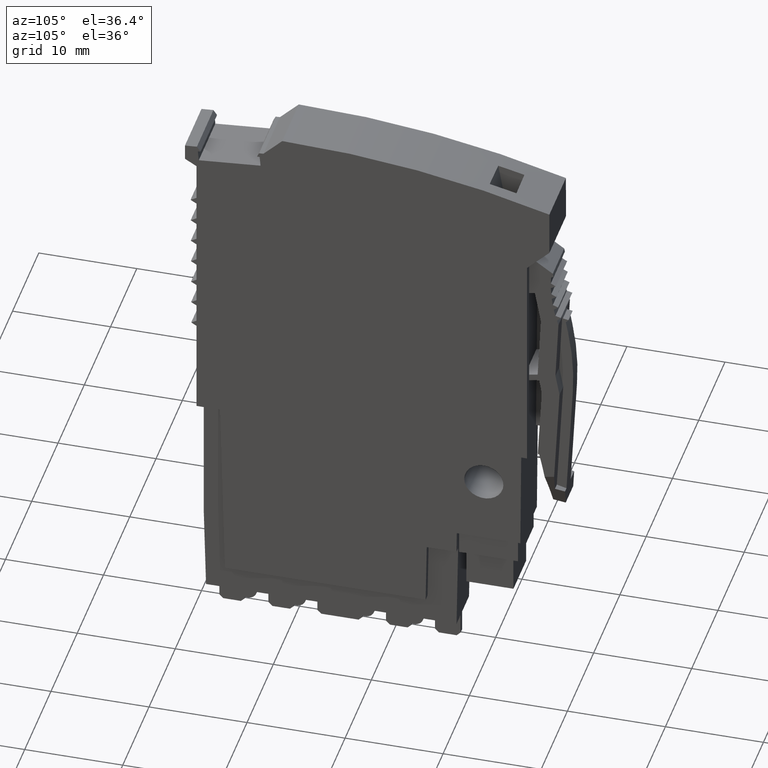
[diagram: clean part render]
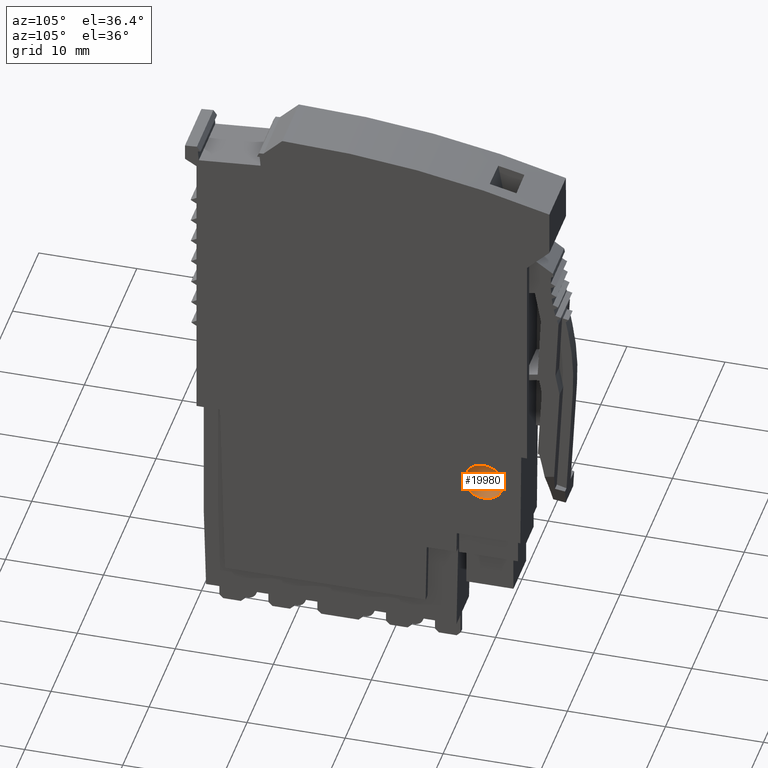
[diagram: same view with one face highlighted and labeled with its STEP entity id]
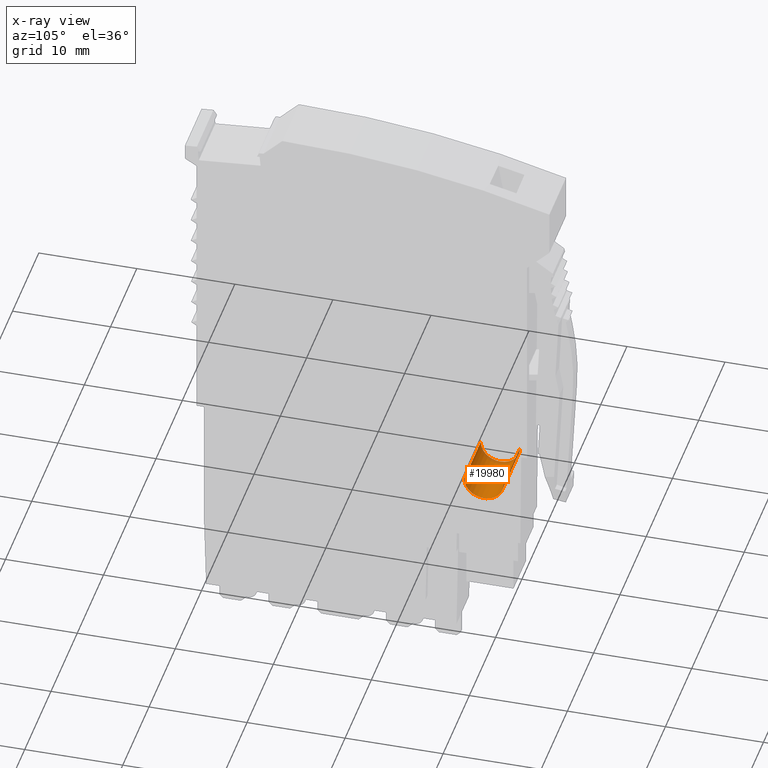
[diagram: x-ray of the same camera — body ghosted, the highlighted face saturated]
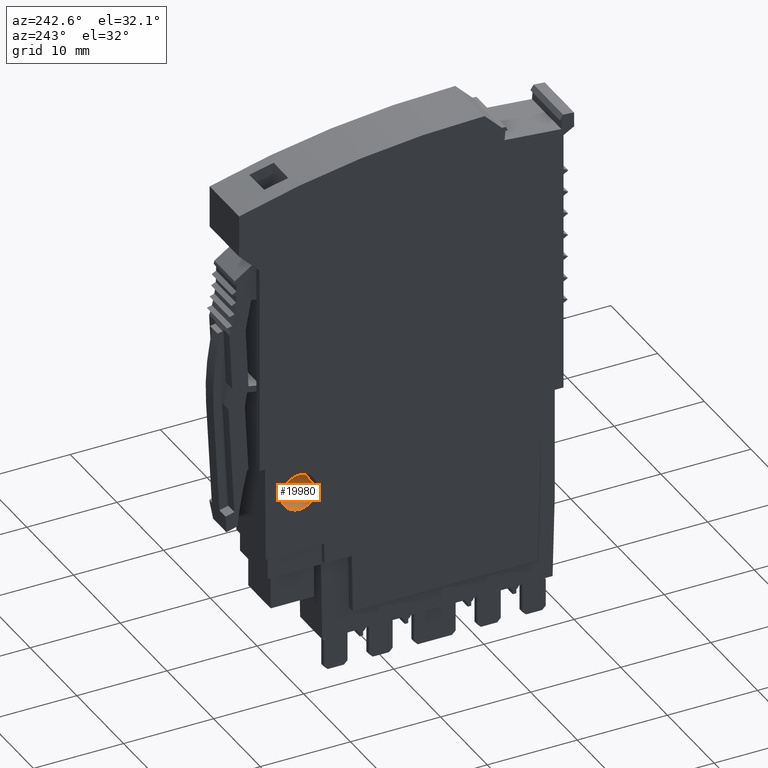
[diagram: same view with one face highlighted and labeled with its STEP entity id]
A machine part, auxiliary view. The second image highlights one B-rep face of the part: STEP entity #19980.
The next image is the same camera in x-ray: the body ghosted, the highlighted face saturated — about 7% of this face is hidden behind the body in this view.
A second angle (auxiliary view) of the same face is appended — the face is thin or edge-on in the first view.
In plain terms, the highlighted cylindrical surface (edge-blend (fillet) strip) has radius 2 mm, axis along (1, 0, 0).
Its self-contained STEP definition (entity closure, byte-faithful):
#19530=CARTESIAN_POINT('',(-2.89964321690515,54.6030367051887,
6.02557360760812E-8));
#19540=DIRECTION('',(-4.25831752161686E-18,-1.10352358519E-9,1.));
#19550=DIRECTION('',(1.,0.,4.25831752161686E-18));
#19560=AXIS2_PLACEMENT_3D('',#19530,#19540,#19550);
#19570=CYLINDRICAL_SURFACE('',#19560,2.);
#19580=CARTESIAN_POINT('',(-2.89964321690514,54.6030367051887,
6.02557360881995E-8));
#19590=DIRECTION('',(-4.25831525547475E-18,-1.10352358519E-9,1.));
#19600=DIRECTION('',(-1.,-3.5527136788005E-15,-4.25831917597809E-18));
#19610=AXIS2_PLACEMENT_3D('',#19580,#19590,#19600);
#19620=CIRCLE('',#19610,2.);
#19630=CARTESIAN_POINT('',(-2.89964341547315,52.6030367051887,
5.80486889195792E-8));
#19640=VERTEX_POINT('',#19630);
#19650=CARTESIAN_POINT('',(-0.89964321690515,54.6030367051887,
6.02557360967161E-8));
#19660=VERTEX_POINT('',#19650);
#19670=EDGE_CURVE('',#19640,#19660,#19620,.T.);
#19680=ORIENTED_EDGE('',*,*,#19670,.F.);
#19690=CARTESIAN_POINT('',(-0.89964321690515,54.6030367051887,
6.02557360845978E-8));
#19700=DIRECTION('',(-4.25831752161686E-18,-1.10352358519E-9,1.));
#19710=VECTOR('',#19700,1.);
#19720=LINE('',#19690,#19710);
#19730=CARTESIAN_POINT('',(-0.89964321690515,54.6030366982365,
6.30000004348015));
#19740=VERTEX_POINT('',#19730);
#19750=EDGE_CURVE('',#19660,#19740,#19720,.T.);
#19760=ORIENTED_EDGE('',*,*,#19750,.F.);
#19770=CARTESIAN_POINT('',(-2.89964321690515,54.6030366982365,
6.30000004093548));
#19780=DIRECTION('',(-1.27233440234888E-9,-1.58421926328788E-24,1.));
#19790=DIRECTION('',(-1.,0.,-1.27233440234888E-9));
#19800=AXIS2_PLACEMENT_3D('',#19770,#19780,#19790);
#19810=CIRCLE('',#19800,2.);
#19820=CARTESIAN_POINT('',(-4.89964321690515,54.6030366982365,
6.30000003839081));
#19830=VERTEX_POINT('',#19820);
#19840=EDGE_CURVE('',#19830,#19740,#19810,.T.);
#19850=ORIENTED_EDGE('',*,*,#19840,.T.);
#19860=CARTESIAN_POINT('',(-4.89964321690515,54.6030367051887,
6.02557360675646E-8));
#19870=DIRECTION('',(-4.25831752161686E-18,-1.10352358519E-9,1.));
#19880=VECTOR('',#19870,1.);
#19890=LINE('',#19860,#19880);
#19900=CARTESIAN_POINT('',(-4.89964321690515,54.6030367051887,
6.02557360796828E-8));
#19910=VERTEX_POINT('',#19900);
#19920=EDGE_CURVE('',#19910,#19830,#19890,.T.);
#19930=ORIENTED_EDGE('',*,*,#19920,.T.);
#19940=EDGE_CURVE('',#19910,#19640,#19620,.T.);
#19950=ORIENTED_EDGE('',*,*,#19940,.F.);
#19960=EDGE_LOOP('',(#19950,#19930,#19850,#19760,#19680));
#19970=FACE_OUTER_BOUND('',#19960,.T.);
#19980=ADVANCED_FACE('',(#19970),#19570,.F.);